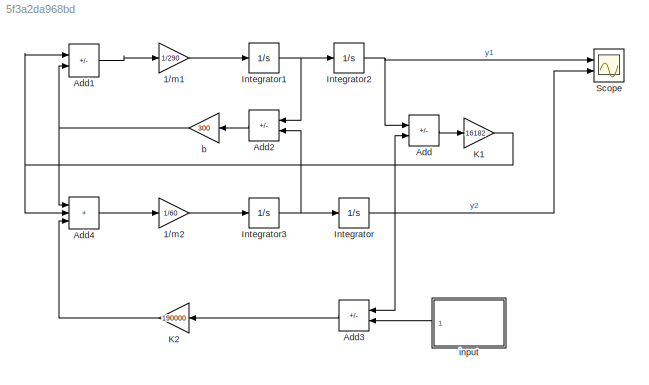
MODEL slx_5f3a2da968bd
KIND model
CONFIG AbsTol = auto
CONFIG EnableMultiTasking = off
CONFIG FixedStep = auto
CONFIG MaxStep = auto
CONFIG MinStep = auto
CONFIG RelTol = 1e-3
CONFIG SampleTimeConstraint = Unconstrained
CONFIG SolverName = VariableStepAuto
CONFIG StartTime = 0.0
CONFIG StopTime = 10
BLOCK [Gain] 1//m1
  Gain = 1/290
BLOCK [Gain] 1//m2
  Gain = 1/60
BLOCK [Sum] Add
  IconShape = rectangular
  Inputs = +-
  Ports = [2, 1]
BLOCK [Sum] Add1
  IconShape = rectangular
  Inputs = --
  Ports = [2, 1]
BLOCK [Sum] Add2
  IconShape = rectangular
  Inputs = +-
  Ports = [2, 1]
BLOCK [Sum] Add3
  IconShape = rectangular
  Inputs = -+
  Ports = [2, 1]
BLOCK [Sum] Add4
  IconShape = rectangular
  Inputs = +++
  Ports = [3, 1]
BLOCK [Integrator] Integrator
  Ports = [1, 1]
BLOCK [Integrator] Integrator1
  Ports = [1, 1]
BLOCK [Integrator] Integrator2
  Ports = [1, 1]
BLOCK [Integrator] Integrator3
  Ports = [1, 1]
BLOCK [Gain] K1
  Gain = 16182
BLOCK [Gain] K2
  Gain = 190000
BLOCK [Scope] Scope
  Floating = off
  NumInputPorts = 2
  Ports = [2]
  ScopeSpecificationString = Simulink.scopes.TimeScopeBlockCfg('CurrentConfiguration', extmgr.ConfigurationSet(extmgr.Configuration('Core','General UI',true),extmgr.Configuration('Core','Source UI',true),extmgr.Configuration('Sources','WiredSimulink',true),extmgr.Configuration('Visuals','Time Domain',true,'SerializedDisplays',{struct('MinYLimReal','-0.23152','MaxYLimReal','2.08364','YLabelReal','','MinYLimMag','0.00000','MaxY...<+4684ch>
BLOCK [Gain] b
  Gain = 300
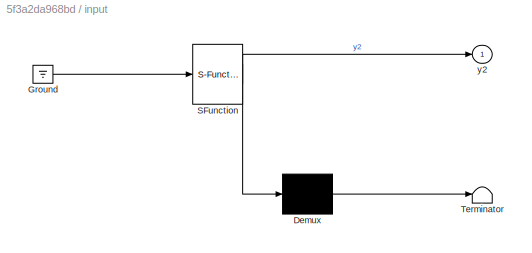
BLOCK [SubSystem] input
  ErrorFcn = Stateflow.Translate.translate
  PermitHierarchicalResolution = ExplicitOnly
  Ports = [0, 1]
  RequestExecContextInheritance = off
  SFBlockType = MATLAB Function
  TreatAsAtomicUnit = on
BLOCK [Demux] input/ Demux 
  Outputs = 1
  Ports = [1, 1]
BLOCK [Ground] input/ Ground 
BLOCK [S-Function] input/ SFunction 
  EnableBusSupport = on
  FunctionName = sf_sfun
  PortCounts = [1 2]
  Ports = [1, 2]
  SFcnIsStateOwnerBlock = off
  SFunctionDeploymentMode = off
  Tag = Stateflow S-Function 2
BLOCK [Terminator] input/ Terminator 
BLOCK [Outport] input/y2
LINE 1//m1:1 -> Integrator1:1
LINE 1//m2:1 -> Integrator3:1
LINE Add1:1 -> 1//m1:1
LINE Add2:1 -> b:1
LINE Add3:1 -> K2:1
LINE Add4:1 -> 1//m2:1
LINE Add:1 -> K1:1
NET Integrator1:1 -> Add2:1, Integrator2:1
NET Integrator2:1 -> Add:1, Scope:1
NET Integrator3:1 -> Add2:2, Integrator:1
NET Integrator:1 -> Add3:1, Add:2, Scope:2
NET K1:1 -> Add1:1, Add4:2
LINE K2:1 -> Add4:3
NET b:1 -> Add1:2, Add4:1
LINE input:1 -> Add3:2
note: NET lines group one-source signal fan-out (src -> all destinations, sorted); 1:1 wires keep LINE
CHART input states=1 transitions=1
  STATE_LABEL 'eML_blk_kernel()'
  STATE_LABEL 'SCRIPT:\nfunction y2 = fcn\n\nt=linspace(0,100);\ny=sin(t);\ny(t>pi)=0;\n\ny2=round(y)\nhold on\nplot(y2,\'b\')\nxlabel("Time(sec)")\nylabel("Amplitude")\ntitle("dummy signal")\n'
CHART  states=0 transitions=0
